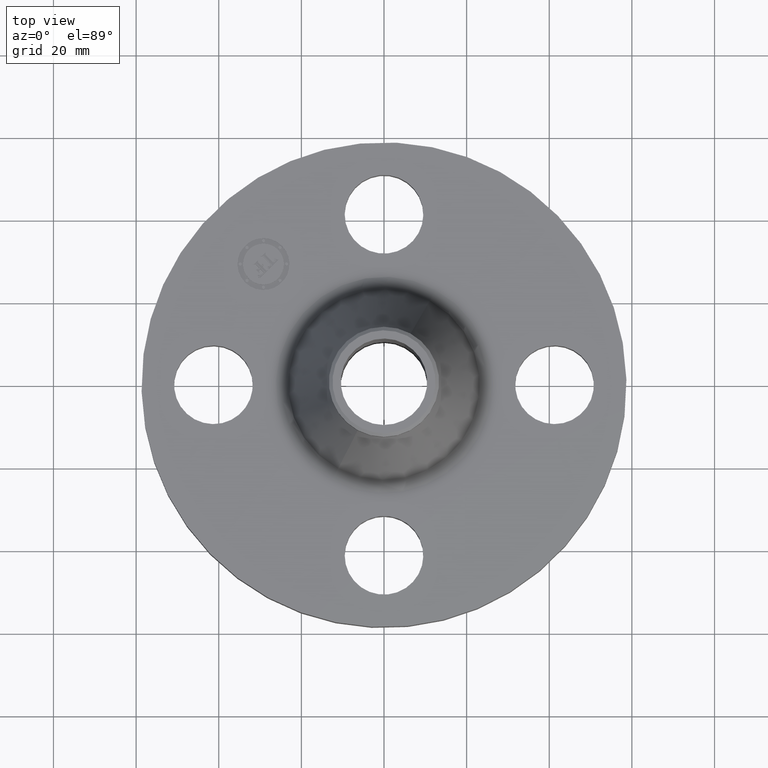
[diagram: clean part render]
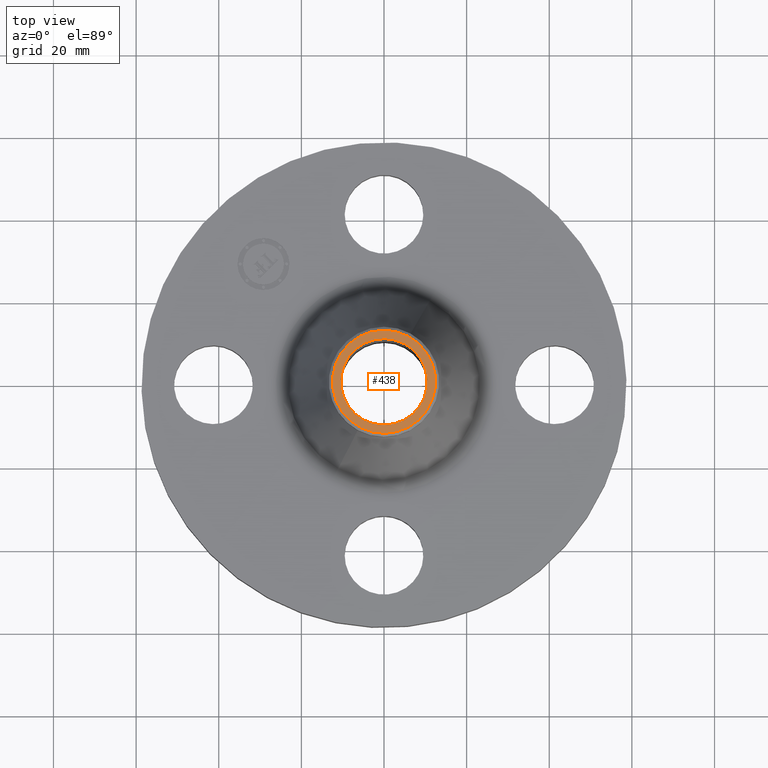
[diagram: same view with one face highlighted and labeled with its STEP entity id]
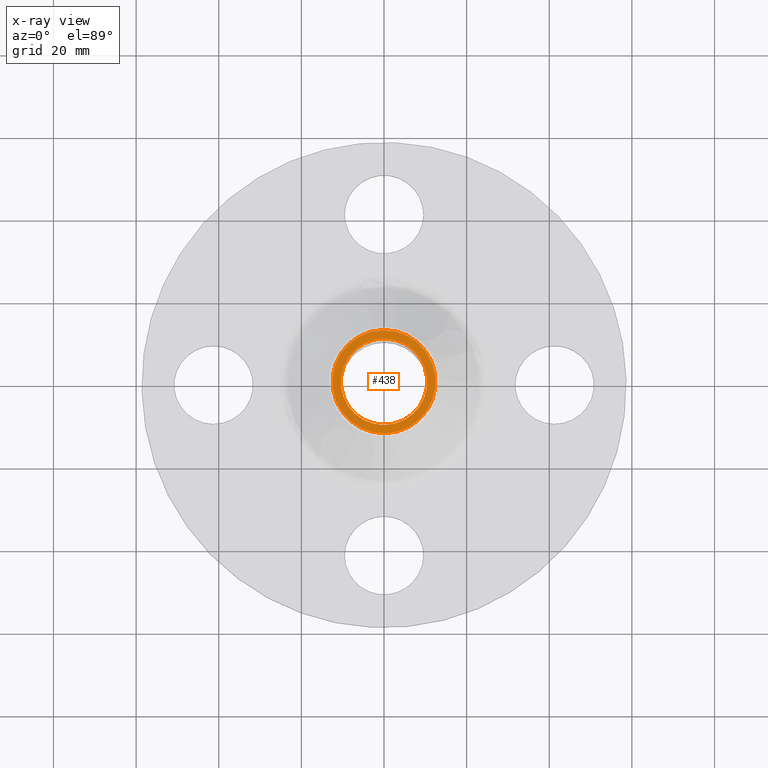
[diagram: x-ray of the same camera — body ghosted, the highlighted face saturated]
A machine part, top view. The second image highlights one B-rep face of the part: STEP entity #438.
The next image is the same camera in x-ray: the body ghosted, the highlighted face saturated — about 0% of this face is hidden behind the body in this view.
In plain terms, the highlighted planar face has unit normal (0, 0, -1).
Its self-contained STEP definition (entity closure, byte-faithful):
#345=AXIS2_PLACEMENT_3D('Circle Axis2P3D',#343,#344,$) ;
#370=AXIS2_PLACEMENT_3D('Circle Axis2P3D',#368,#369,$) ;
#405=AXIS2_PLACEMENT_3D('Circle Axis2P3D',#403,#404,$) ;
#423=AXIS2_PLACEMENT_3D('Plane Axis2P3D',#420,#421,#422) ;
#427=AXIS2_PLACEMENT_3D('Circle Axis2P3D',#425,#426,$) ;
#340=CARTESIAN_POINT('Vertex',(0.235273364315,-0.430665004625,2.19000000001)) ;
#343=CARTESIAN_POINT('Axis2P3D Location',(0.,0.,2.19000000001)) ;
#347=CARTESIAN_POINT('Vertex',(-0.235273364315,0.430665004625,2.19000000001)) ;
#368=CARTESIAN_POINT('Axis2P3D Location',(0.,0.,2.19000000001)) ;
#372=CARTESIAN_POINT('Vertex',(0.197523321906,0.3615640155,2.19000000001)) ;
#374=CARTESIAN_POINT('Vertex',(-0.197523321906,-0.3615640155,2.19000000001)) ;
#403=CARTESIAN_POINT('Axis2P3D Location',(0.,0.,2.19000000001)) ;
#420=CARTESIAN_POINT('Axis2P3D Location',(0.,0.525000000002,2.19000000001)) ;
#425=CARTESIAN_POINT('Axis2P3D Location',(0.,0.,2.19000000001)) ;
#344=DIRECTION('Axis2P3D Direction',(0.,0.,-0.0393700787402)) ;
#369=DIRECTION('Axis2P3D Direction',(0.,0.,-0.0393700787402)) ;
#404=DIRECTION('Axis2P3D Direction',(0.,0.,-0.0393700787402)) ;
#421=DIRECTION('Axis2P3D Direction',(0.,0.,-0.0393700787402)) ;
#422=DIRECTION('Axis2P3D XDirection',(0.0393700787402,0.,0.)) ;
#426=DIRECTION('Axis2P3D Direction',(0.,0.,-0.0393700787402)) ;
#431=ORIENTED_EDGE('',*,*,#429,.T.) ;
#432=ORIENTED_EDGE('',*,*,#349,.T.) ;
#435=ORIENTED_EDGE('',*,*,#407,.T.) ;
#436=ORIENTED_EDGE('',*,*,#376,.T.) ;
#437=FACE_BOUND('',#434,.T.) ;
#438=ADVANCED_FACE('PartBody',(#433,#437),#424,.F.) ;
#346=CIRCLE('generated circle',#345,0.490740157482) ;
#371=CIRCLE('generated circle',#370,0.412000000002) ;
#406=CIRCLE('generated circle',#405,0.412000000002) ;
#428=CIRCLE('generated circle',#427,0.490740157482) ;
#349=EDGE_CURVE('',#348,#341,#346,.F.) ;
#376=EDGE_CURVE('',#373,#375,#371,.T.) ;
#407=EDGE_CURVE('',#375,#373,#406,.T.) ;
#429=EDGE_CURVE('',#341,#348,#428,.F.) ;
#430=EDGE_LOOP('',(#431,#432)) ;
#434=EDGE_LOOP('',(#435,#436)) ;
#433=FACE_OUTER_BOUND('',#430,.T.) ;
#424=PLANE('',#423) ;
#341=VERTEX_POINT('',#340) ;
#348=VERTEX_POINT('',#347) ;
#373=VERTEX_POINT('',#372) ;
#375=VERTEX_POINT('',#374) ;